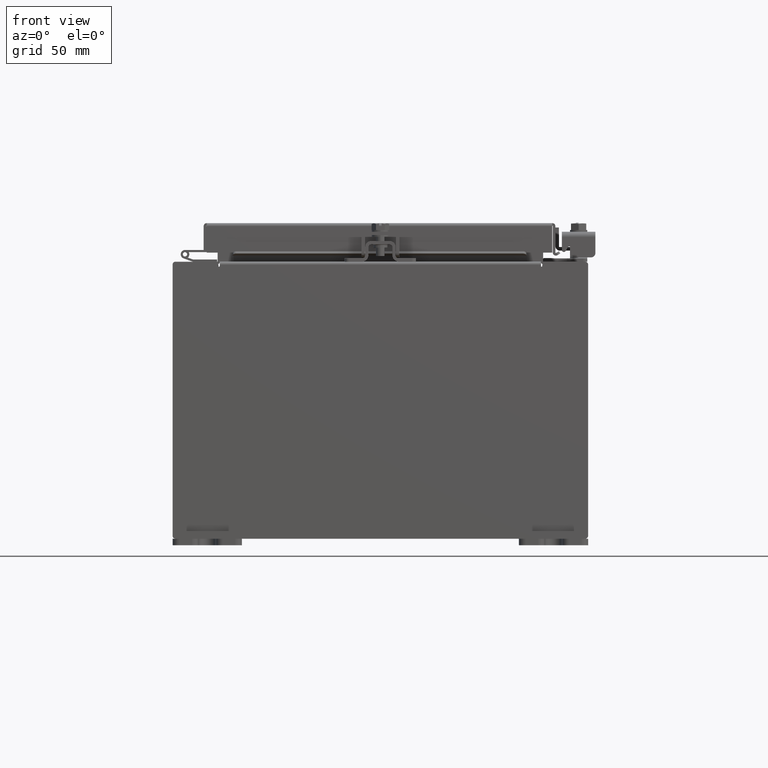
[diagram: clean part render]
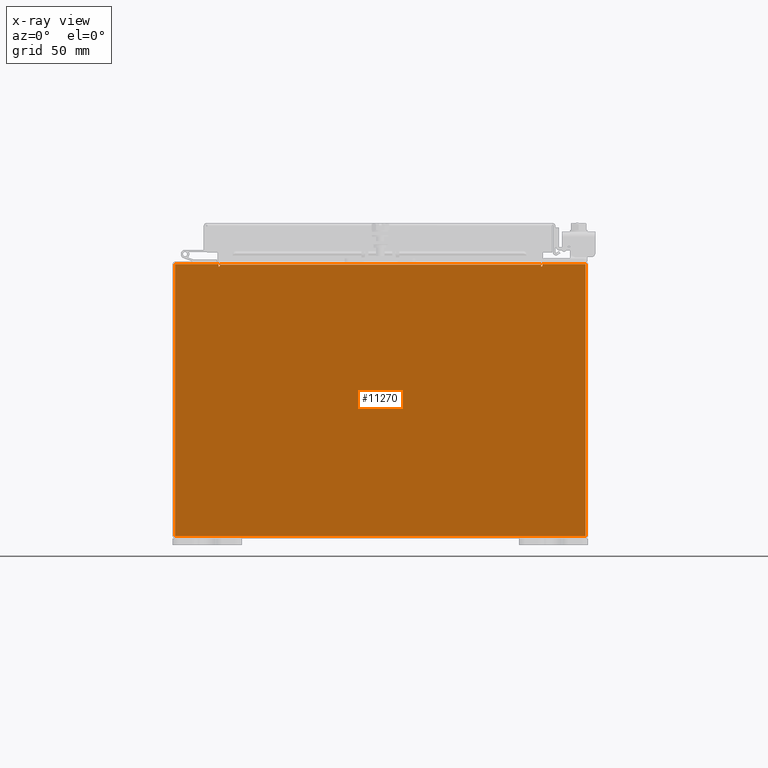
[diagram: x-ray — body ghosted, one internal face saturated and labeled with its STEP entity id]
A machine part, front view, then the same camera in x-ray: the body is ghosted and one INTERNAL B-rep face — a face not visible from any outside direction — is saturated and labeled: STEP entity #11270.
In plain terms, the highlighted planar face has unit normal (0, -1, 0).
Its self-contained STEP definition (entity closure, byte-faithful):
#64 = LINE ( 'NONE', #2706, #13945 ) ;
#68 = CARTESIAN_POINT ( 'NONE',  ( -4.674549999999998200, -0.07470000000000015500, 3.925299999999998700 ) ) ;
#201 = VECTOR ( 'NONE', #15947, 39.37007874015748100 ) ;
#479 = CARTESIAN_POINT ( 'NONE',  ( -4.637199999999998200, -0.07470000000000015500, 3.874949999999999700 ) ) ;
#959 = PLANE ( 'NONE',  #9470 ) ;
#983 = DIRECTION ( 'NONE',  ( 0.0000000000000000000, 0.0000000000000000000, -1.000000000000000000 ) ) ;
#1067 = LINE ( 'NONE', #479, #19171 ) ;
#1293 = LINE ( 'NONE', #21659, #15156 ) ;
#1610 = CARTESIAN_POINT ( 'NONE',  ( -4.655874999999998200, -0.07470000000000015500, 3.874949999999999700 ) ) ;
#1616 = CARTESIAN_POINT ( 'NONE',  ( 4.655875000000002700, -0.07470000000000015500, 3.874949999999999700 ) ) ;
#1883 = CARTESIAN_POINT ( 'NONE',  ( 5.925300000000002700, -0.07470000000000015500, -3.925300000000000500 ) ) ;
#1923 = CARTESIAN_POINT ( 'NONE',  ( -5.925299999999998200, -0.07470000000000015500, 3.925299999999998700 ) ) ;
#2313 = LINE ( 'NONE', #3961, #16757 ) ;
#2706 = CARTESIAN_POINT ( 'NONE',  ( 5.925300000000002700, -0.07470000000000015500, 3.925299999999998700 ) ) ;
#2835 = EDGE_CURVE ( 'NONE', #18298, #13893, #21717, .T. ) ;
#3235 = VERTEX_POINT ( 'NONE', #12951 ) ;
#3376 = CARTESIAN_POINT ( 'NONE',  ( -5.925299999999998200, -0.07470000000000015500, 3.925299999999998700 ) ) ;
#3449 = DIRECTION ( 'NONE',  ( 0.0000000000000000000, 0.0000000000000000000, -1.000000000000000000 ) ) ;
#3452 = DIRECTION ( 'NONE',  ( 0.0000000000000000000, 0.0000000000000000000, -1.000000000000000000 ) ) ;
#3530 = CARTESIAN_POINT ( 'NONE',  ( 4.674550000000001800, -0.07470000000000015500, 3.925299999999998700 ) ) ;
#3729 = CARTESIAN_POINT ( 'NONE',  ( -5.925299999999998200, -0.07470000000000015500, 3.925299999999998700 ) ) ;
#3861 = EDGE_CURVE ( 'NONE', #15869, #21632, #4159, .T. ) ;
#3961 = CARTESIAN_POINT ( 'NONE',  ( -5.925299999999998200, -0.07470000000000015500, 3.925299999999998700 ) ) ;
#4135 = ORIENTED_EDGE ( 'NONE', *, *, #5877, .F. ) ;
#4159 = CIRCLE ( 'NONE', #20158, 0.01867500000000003900 ) ;
#4490 = EDGE_CURVE ( 'NONE', #9616, #12451, #19968, .T. ) ;
#4740 = DIRECTION ( 'NONE',  ( 1.000000000000000000, 0.0000000000000000000, 0.0000000000000000000 ) ) ;
#4942 = VERTEX_POINT ( 'NONE', #7166 ) ;
#4972 = EDGE_CURVE ( 'NONE', #13893, #15869, #1293, .T. ) ;
#5067 = EDGE_LOOP ( 'NONE', ( #16099, #14519, #13881, #19313, #5102, #10912, #21371, #4135, #11259, #22514, #16509, #17312 ) ) ;
#5102 = ORIENTED_EDGE ( 'NONE', *, *, #8782, .F. ) ;
#5255 = VECTOR ( 'NONE', #7108, 39.37007874015748100 ) ;
#5624 = DIRECTION ( 'NONE',  ( 0.0000000000000000000, -1.695536242343751900E-015, -1.000000000000000000 ) ) ;
#5790 = CARTESIAN_POINT ( 'NONE',  ( -4.637199999999998200, -0.07470000000000015500, 3.912299999999998800 ) ) ;
#5849 = DIRECTION ( 'NONE',  ( 0.0000000000000000000, 0.0000000000000000000, 1.000000000000000000 ) ) ;
#5877 = EDGE_CURVE ( 'NONE', #21632, #15471, #18504, .T. ) ;
#6103 = VECTOR ( 'NONE', #14567, 39.37007874015748100 ) ;
#6394 = DIRECTION ( 'NONE',  ( 0.0000000000000000000, -0.0000000000000000000, -1.000000000000000000 ) ) ;
#6507 = VERTEX_POINT ( 'NONE', #1923 ) ;
#6847 = CARTESIAN_POINT ( 'NONE',  ( -5.925299999999998200, -0.07470000000000015500, -3.925300000000000500 ) ) ;
#7108 = DIRECTION ( 'NONE',  ( 1.000000000000000000, 0.0000000000000000000, 0.0000000000000000000 ) ) ;
#7166 = CARTESIAN_POINT ( 'NONE',  ( 5.925300000000002700, -0.07470000000000015500, 3.925299999999998700 ) ) ;
#7215 = CARTESIAN_POINT ( 'NONE',  ( -4.674549999999998200, -0.07470000000000015500, 3.874949999999999700 ) ) ;
#8048 = DIRECTION ( 'NONE',  ( 1.085143195100001200E-014, 1.695536242343751900E-015, 1.000000000000000000 ) ) ;
#8236 = VERTEX_POINT ( 'NONE', #1883 ) ;
#8547 = CARTESIAN_POINT ( 'NONE',  ( -5.925299999999998200, -0.07470000000000015500, -3.925300000000000500 ) ) ;
#8782 = EDGE_CURVE ( 'NONE', #8236, #21441, #17745, .T. ) ;
#9470 = AXIS2_PLACEMENT_3D ( 'NONE', #11714, #17239, #6394 ) ;
#9616 = VERTEX_POINT ( 'NONE', #7215 ) ;
#9658 = EDGE_CURVE ( 'NONE', #21441, #6507, #16307, .T. ) ;
#10696 = VECTOR ( 'NONE', #5624, 39.37007874015748100 ) ;
#10912 = ORIENTED_EDGE ( 'NONE', *, *, #16525, .F. ) ;
#11259 = ORIENTED_EDGE ( 'NONE', *, *, #3861, .F. ) ;
#11267 = LINE ( 'NONE', #68, #10696 ) ;
#11270 = ADVANCED_FACE ( 'NONE', ( #22540 ), #959, .T. ) ;
#11714 = CARTESIAN_POINT ( 'NONE',  ( 0.0000000000000000000, -0.07470000000000015500, 0.0000000000000000000 ) ) ;
#12451 = VERTEX_POINT ( 'NONE', #15522 ) ;
#12705 = VECTOR ( 'NONE', #4740, 39.37007874015748100 ) ;
#12951 = CARTESIAN_POINT ( 'NONE',  ( -4.674549999999998200, -0.07470000000000015500, 3.925299999999998700 ) ) ;
#13189 = EDGE_CURVE ( 'NONE', #6507, #3235, #19692, .T. ) ;
#13204 = CARTESIAN_POINT ( 'NONE',  ( 4.637200000000002700, -0.07470000000000015500, 3.912299999999998800 ) ) ;
#13881 = ORIENTED_EDGE ( 'NONE', *, *, #13189, .F. ) ;
#13893 = VERTEX_POINT ( 'NONE', #13204 ) ;
#13945 = VECTOR ( 'NONE', #983, 39.37007874015748100 ) ;
#14029 = AXIS2_PLACEMENT_3D ( 'NONE', #1610, #14274, #3449 ) ;
#14274 = DIRECTION ( 'NONE',  ( 0.0000000000000000000, -1.000000000000000000, 0.0000000000000000000 ) ) ;
#14278 = DIRECTION ( 'NONE',  ( 0.0000000000000000000, -1.000000000000000000, 0.0000000000000000000 ) ) ;
#14519 = ORIENTED_EDGE ( 'NONE', *, *, #19318, .F. ) ;
#14559 = CARTESIAN_POINT ( 'NONE',  ( 4.674550000000002600, -0.07470000000000015500, 3.874949999999999700 ) ) ;
#14567 = DIRECTION ( 'NONE',  ( -0.0000000000000000000, -0.0000000000000000000, 1.000000000000000000 ) ) ;
#15156 = VECTOR ( 'NONE', #19879, 39.37007874015748100 ) ;
#15471 = VERTEX_POINT ( 'NONE', #3530 ) ;
#15522 = CARTESIAN_POINT ( 'NONE',  ( -4.637199999999998200, -0.07470000000000015500, 3.874949999999999700 ) ) ;
#15616 = CARTESIAN_POINT ( 'NONE',  ( -4.637199999999998200, -0.07470000000000015500, 3.912299999999998800 ) ) ;
#15869 = VERTEX_POINT ( 'NONE', #20742 ) ;
#15947 = DIRECTION ( 'NONE',  ( -1.000000000000000000, -0.0000000000000000000, -0.0000000000000000000 ) ) ;
#16099 = ORIENTED_EDGE ( 'NONE', *, *, #4490, .F. ) ;
#16307 = LINE ( 'NONE', #3729, #6103 ) ;
#16509 = ORIENTED_EDGE ( 'NONE', *, *, #2835, .F. ) ;
#16525 = EDGE_CURVE ( 'NONE', #4942, #8236, #64, .T. ) ;
#16610 = DIRECTION ( 'NONE',  ( 1.000000000000000000, 0.0000000000000000000, 0.0000000000000000000 ) ) ;
#16757 = VECTOR ( 'NONE', #16610, 39.37007874015748100 ) ;
#16914 = EDGE_CURVE ( 'NONE', #15471, #4942, #2313, .T. ) ;
#17239 = DIRECTION ( 'NONE',  ( 0.0000000000000000000, -1.000000000000000000, 0.0000000000000000000 ) ) ;
#17312 = ORIENTED_EDGE ( 'NONE', *, *, #19878, .F. ) ;
#17745 = LINE ( 'NONE', #6847, #201 ) ;
#18298 = VERTEX_POINT ( 'NONE', #5790 ) ;
#18504 = LINE ( 'NONE', #18892, #22707 ) ;
#18892 = CARTESIAN_POINT ( 'NONE',  ( 4.674550000000002600, -0.07470000000000015500, 3.874949999999999700 ) ) ;
#19171 = VECTOR ( 'NONE', #5849, 39.37007874015748100 ) ;
#19313 = ORIENTED_EDGE ( 'NONE', *, *, #9658, .F. ) ;
#19318 = EDGE_CURVE ( 'NONE', #3235, #9616, #11267, .T. ) ;
#19692 = LINE ( 'NONE', #3376, #5255 ) ;
#19878 = EDGE_CURVE ( 'NONE', #12451, #18298, #1067, .T. ) ;
#19879 = DIRECTION ( 'NONE',  ( 0.0000000000000000000, 0.0000000000000000000, -1.000000000000000000 ) ) ;
#19968 = CIRCLE ( 'NONE', #14029, 0.01867500000000003900 ) ;
#20158 = AXIS2_PLACEMENT_3D ( 'NONE', #1616, #14278, #3452 ) ;
#20742 = CARTESIAN_POINT ( 'NONE',  ( 4.637200000000002700, -0.07470000000000015500, 3.874949999999999700 ) ) ;
#21371 = ORIENTED_EDGE ( 'NONE', *, *, #16914, .F. ) ;
#21441 = VERTEX_POINT ( 'NONE', #8547 ) ;
#21632 = VERTEX_POINT ( 'NONE', #14559 ) ;
#21659 = CARTESIAN_POINT ( 'NONE',  ( 4.637200000000002700, -0.07470000000000015500, 3.912299999999998800 ) ) ;
#21717 = LINE ( 'NONE', #15616, #12705 ) ;
#22514 = ORIENTED_EDGE ( 'NONE', *, *, #4972, .F. ) ;
#22540 = FACE_OUTER_BOUND ( 'NONE', #5067, .T. ) ;
#22707 = VECTOR ( 'NONE', #8048, 39.37007874015748100 ) ;